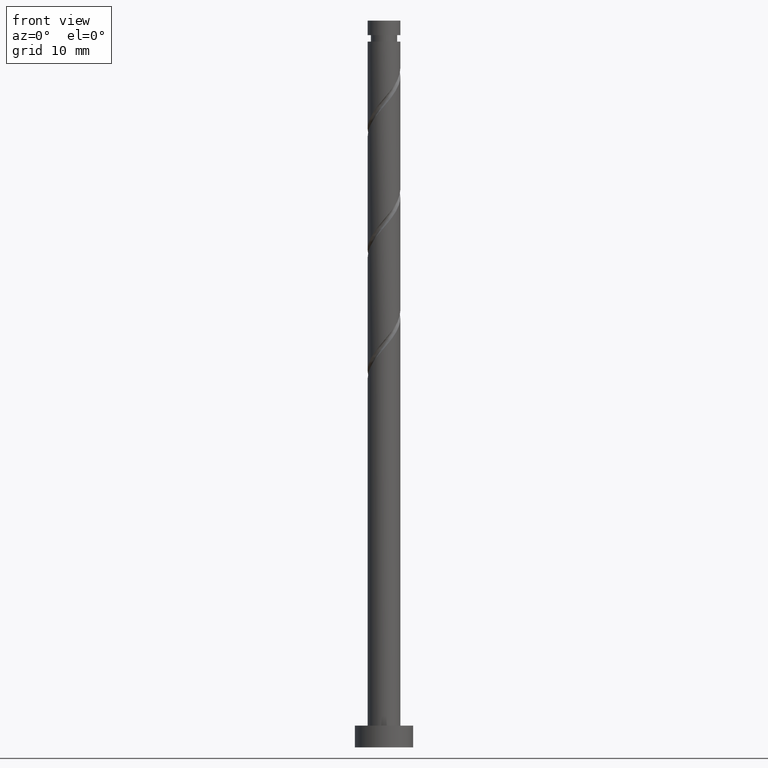
[diagram: clean part render]
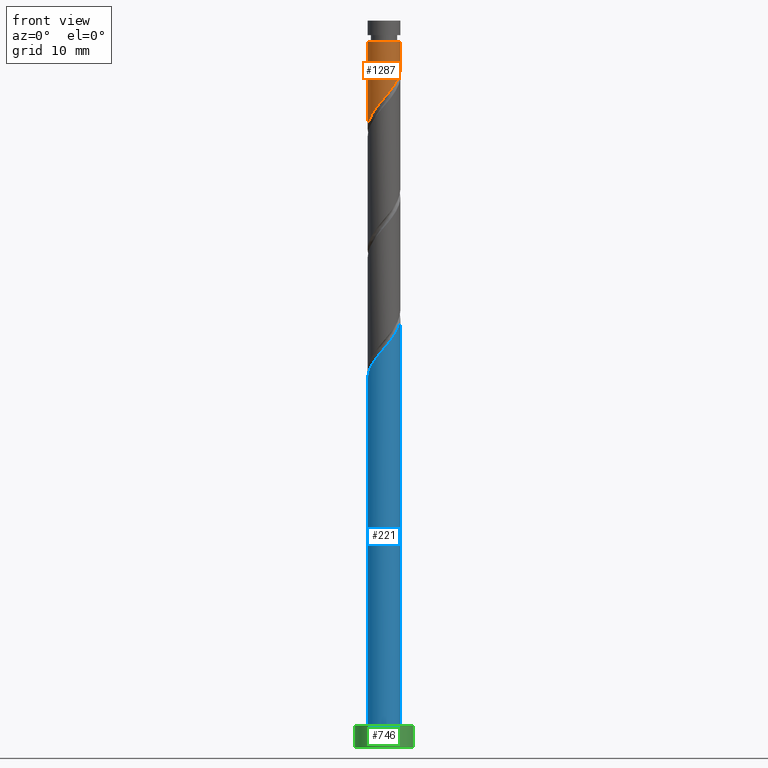
[diagram: same view with three faces highlighted in distinct colors, each labeled with its STEP entity id]
A machine part, front view with three faces highlighted in distinct colors.
Their STEP definitions:

[orange] entity #1287 — the highlighted cylindrical surface (edge-blend (fillet) strip) has radius 2.25 mm, axis along (-0, -0, -1).
#66 = CARTESIAN_POINT ( 'NONE',  ( -1.760338748084743665, -1.401323478712690251, 86.91308190522772747 ) ) ;
#73 = CARTESIAN_POINT ( 'NONE',  ( 0.000000000000000000, 0.000000000000000000, 100.0000000000000000 ) ) ;
#158 = CARTESIAN_POINT ( 'NONE',  ( 1.948486531846220116, -1.193021146543751021, 92.00567449782033691 ) ) ;
#171 = CARTESIAN_POINT ( 'NONE',  ( 2.249999999999999556, -2.913098476644292030E-16, 93.46245531206832879 ) ) ;
#184 = CARTESIAN_POINT ( 'NONE',  ( -0.4477443466979798559, -2.204999999999999627, 88.76493375707960354 ) ) ;
#208 = VECTOR ( 'NONE', #342, 1000.000000000000000 ) ;
#239 = CARTESIAN_POINT ( 'NONE',  ( 0.000000000000000000, 0.000000000000000000, 97.09826709041291792 ) ) ;
#242 =( BOUNDED_CURVE ( )  B_SPLINE_CURVE ( 2, ( #508, #1312, #862, #1080, #1431, #158, #409, #644, #743, #1098, #300, #517, #184, #1191, #613, #867, #66, #1324, #735, #306, #1067 ),
 .UNSPECIFIED., .F., .T. ) 
 B_SPLINE_CURVE_WITH_KNOTS ( ( 3, 2, 2, 2, 2, 2, 2, 2, 2, 2, 3 ),
 ( 0.3045248053855291182, 0.3055555555555555802, 0.3194444444444444198, 0.3333333333333333148, 0.3472222222222222099, 0.3611111111111111049, 0.3750000000000000000, 0.3888888888888888951, 0.4027777777777777901, 0.4166666666666666852, 0.4295248053855288406 ),
 .UNSPECIFIED. ) 
 CURVE ( )  GEOMETRIC_REPRESENTATION_ITEM ( )  RATIONAL_B_SPLINE_CURVE ( ( 0.9071930855141199235, 0.9080659294509675350, 0.9090909090909076173, 0.8952797754656421914, 0.9090909090909076173, 0.8952797754656421914, 0.9090909090909076173, 0.8952797754656421914, 0.9090909090909076173, 0.8952797754656421914, 0.9090909090909076173, 0.8952797754656421914, 0.9090909090909076173, 0.8952797754656421914, 0.9090909090909076173, 0.8952797754656421914, 0.9090909090909076173, 0.8952797754656421914, 0.9090909090909076173, 0.8963047551055824957, 0.9071930855141194794 ) ) 
 REPRESENTATION_ITEM ( '' )  );
#248 = DIRECTION ( 'NONE',  ( -0.000000000000000000, -0.000000000000000000, -1.000000000000000000 ) ) ;
#300 = CARTESIAN_POINT ( 'NONE',  ( 0.3334123574424003866, -2.225159814463828045, 89.69085968300552736 ) ) ;
#306 = CARTESIAN_POINT ( 'NONE',  ( -2.249999999999997335, -0.3668723365960327998, 85.55904149110062917 ) ) ;
#308 = AXIS2_PLACEMENT_3D ( 'NONE', #73, #315, #532 ) ;
#315 = DIRECTION ( 'NONE',  ( -0.000000000000000000, -0.000000000000000000, -1.000000000000000000 ) ) ;
#325 = FACE_OUTER_BOUND ( 'NONE', #1127, .T. ) ;
#342 = DIRECTION ( 'NONE',  ( -0.000000000000000000, -0.000000000000000000, -1.000000000000000000 ) ) ;
#359 = EDGE_CURVE ( 'NONE', #652, #495, #1027, .T. ) ;
#381 = ORIENTED_EDGE ( 'NONE', *, *, #1053, .T. ) ;
#396 = CIRCLE ( 'NONE', #439, 2.250000000000000444 ) ;
#409 = CARTESIAN_POINT ( 'NONE',  ( 1.685713841995696294, -1.490257978641318148, 91.54271153485736079 ) ) ;
#439 = AXIS2_PLACEMENT_3D ( 'NONE', #239, #248, #940 ) ;
#490 = ORIENTED_EDGE ( 'NONE', *, *, #1168, .F. ) ;
#494 = DIRECTION ( 'NONE',  ( -0.000000000000000000, -0.000000000000000000, -1.000000000000000000 ) ) ;
#495 = VERTEX_POINT ( 'NONE', #171 ) ;
#508 = CARTESIAN_POINT ( 'NONE',  ( 2.249999999999999556, -2.913098476644292523E-16, 93.46245531206832879 ) ) ;
#517 = CARTESIAN_POINT ( 'NONE',  ( -0.05894335423581530814, -2.283949408782537827, 89.22789672004253703 ) ) ;
#532 = DIRECTION ( 'NONE',  ( -1.000000000000000000, 0.000000000000000000, 0.000000000000000000 ) ) ;
#540 = CYLINDRICAL_SURFACE ( 'NONE', #308, 2.250000000000000000 ) ;
#613 = CARTESIAN_POINT ( 'NONE',  ( -1.174896474623798870, -1.918884643202026563, 87.83900783115363708 ) ) ;
#627 = CARTESIAN_POINT ( 'NONE',  ( -2.250000000000000000, 0.000000000000000000, 100.0000000000000000 ) ) ;
#644 = CARTESIAN_POINT ( 'NONE',  ( 1.422941152145172916, -1.787494810738885054, 91.07974857189439888 ) ) ;
#652 = VERTEX_POINT ( 'NONE', #945 ) ;
#693 = VECTOR ( 'NONE', #494, 1000.000000000000000 ) ;
#735 = CARTESIAN_POINT ( 'NONE',  ( -2.133458188693676760, -0.7147420213586820337, 85.98715597930180365 ) ) ;
#736 = VERTEX_POINT ( 'NONE', #1109 ) ;
#743 = CARTESIAN_POINT ( 'NONE',  ( 1.074354610632894280, -1.976932515442001437, 90.61678560893143697 ) ) ;
#862 = CARTESIAN_POINT ( 'NONE',  ( 2.249251085256692484, -0.05804787223997596307, 93.39456338670920843 ) ) ;
#867 = CARTESIAN_POINT ( 'NONE',  ( -1.513247610087451678, -1.711718695186592809, 87.37604486819070360 ) ) ;
#926 = EDGE_CURVE ( 'NONE', #652, #736, #396, .T. ) ;
#940 = DIRECTION ( 'NONE',  ( -1.000000000000000000, 0.000000000000000000, 0.000000000000000000 ) ) ;
#945 = CARTESIAN_POINT ( 'NONE',  ( 2.250000000000000444, 2.755455298081544285E-16, 97.09826709041291792 ) ) ;
#957 = LINE ( 'NONE', #627, #693 ) ;
#983 = ORIENTED_EDGE ( 'NONE', *, *, #359, .F. ) ;
#1027 = LINE ( 'NONE', #1361, #208 ) ;
#1053 = EDGE_CURVE ( 'NONE', #736, #1405, #957, .T. ) ;
#1067 = CARTESIAN_POINT ( 'NONE',  ( -2.250000000000000000, -5.676807287819645982E-16, 85.12912197873504283 ) ) ;
#1080 = CARTESIAN_POINT ( 'NONE',  ( 2.239015679208066878, -0.4546515249585263430, 92.93160042374627494 ) ) ;
#1098 = CARTESIAN_POINT ( 'NONE',  ( 0.7257680691206149781, -2.166370220145118264, 90.15382264596844664 ) ) ;
#1109 = CARTESIAN_POINT ( 'NONE',  ( -2.250000000000000444, 0.000000000000000000, 97.09826709041291792 ) ) ;
#1127 = EDGE_LOOP ( 'NONE', ( #983, #1263, #381, #490 ) ) ;
#1168 = EDGE_CURVE ( 'NONE', #495, #1405, #242, .T. ) ;
#1191 = CARTESIAN_POINT ( 'NONE',  ( -0.8365453391601453959, -2.126050591217459651, 88.30197079411661321 ) ) ;
#1263 = ORIENTED_EDGE ( 'NONE', *, *, #926, .T. ) ;
#1287 = ADVANCED_FACE ( 'NONE', ( #325 ), #540, .T. ) ;
#1312 = CARTESIAN_POINT ( 'NONE',  ( 2.249999999999999112, -0.02902876724704997816, 93.42843793813595710 ) ) ;
#1324 = CARTESIAN_POINT ( 'NONE',  ( -2.007429886082034542, -1.090928262238788804, 86.45011894226479399 ) ) ;
#1338 = CARTESIAN_POINT ( 'NONE',  ( -2.250000000000000000, -5.676807287819645982E-16, 85.12912197873504283 ) ) ;
#1361 = CARTESIAN_POINT ( 'NONE',  ( 2.250000000000000000, 2.755455298081543792E-16, 100.0000000000000000 ) ) ;
#1405 = VERTEX_POINT ( 'NONE', #1338 ) ;
#1431 = CARTESIAN_POINT ( 'NONE',  ( 2.093751105527143608, -0.8238363357511377938, 92.46863746078328461 ) ) ;

[blue] entity #221 — the highlighted cylindrical surface (edge-blend (fillet) strip) has radius 2.25 mm, axis along (-0, -0, -1).
#93 = CARTESIAN_POINT ( 'NONE',  ( -2.250000000000001776, -0.02902876724704970060, 50.76809624268985033 ) ) ;
#99 = CARTESIAN_POINT ( 'NONE',  ( -1.948486531846222780, -1.193021146543750799, 52.19085968300550604 ) ) ;
#117 = VERTEX_POINT ( 'NONE', #403 ) ;
#145 = LINE ( 'NONE', #264, #967 ) ;
#161 = CARTESIAN_POINT ( 'NONE',  ( -2.250000000000000000, 0.000000000000000000, 100.0000000000000000 ) ) ;
#205 = CARTESIAN_POINT ( 'NONE',  ( 1.760338748084745220, -1.401323478712693138, 57.28345227559809416 ) ) ;
#221 = ADVANCED_FACE ( 'NONE', ( #1363 ), #344, .T. ) ;
#230 = CARTESIAN_POINT ( 'NONE',  ( 0.000000000000000000, 0.000000000000000000, 3.000000000000000000 ) ) ;
#231 = VECTOR ( 'NONE', #724, 1000.000000000000000 ) ;
#264 = CARTESIAN_POINT ( 'NONE',  ( 2.250000000000000000, 2.755455298081543792E-16, 100.0000000000000000 ) ) ;
#333 = CARTESIAN_POINT ( 'NONE',  ( 0.05894335423581345546, -2.283949408782541379, 54.96863746078327750 ) ) ;
#344 = CYLINDRICAL_SURFACE ( 'NONE', #852, 2.250000000000000000 ) ;
#355 = DIRECTION ( 'NONE',  ( 0.000000000000000000, 0.000000000000000000, 1.000000000000000000 ) ) ;
#389 = ORIENTED_EDGE ( 'NONE', *, *, #664, .F. ) ;
#403 = CARTESIAN_POINT ( 'NONE',  ( 2.250000000000002665, -9.038074760870697025E-16, 59.06741220209084986 ) ) ;
#410 = VERTEX_POINT ( 'NONE', #1250 ) ;
#416 = EDGE_CURVE ( 'NONE', #410, #990, #1022, .T. ) ;
#449 = CARTESIAN_POINT ( 'NONE',  ( 2.007429886082036763, -1.090928262238790802, 57.74641523856106318 ) ) ;
#496 = EDGE_LOOP ( 'NONE', ( #389, #1099, #1458, #741 ) ) ;
#553 = CARTESIAN_POINT ( 'NONE',  ( -2.093751105527146272, -0.8238363357511384599, 51.72789672004253703 ) ) ;
#561 = CARTESIAN_POINT ( 'NONE',  ( 1.513247610087452788, -1.711718695186595252, 56.82048931263513225 ) ) ;
#605 = VERTEX_POINT ( 'NONE', #717 ) ;
#655 = EDGE_CURVE ( 'NONE', #605, #410, #1290, .T. ) ;
#664 = EDGE_CURVE ( 'NONE', #117, #990, #145, .T. ) ;
#682 = DIRECTION ( 'NONE',  ( -1.000000000000000000, 0.000000000000000000, 0.000000000000000000 ) ) ;
#717 = CARTESIAN_POINT ( 'NONE',  ( -2.250000000000002665, 8.963379928136229465E-16, 50.73407886875750705 ) ) ;
#724 = DIRECTION ( 'NONE',  ( -0.000000000000000000, -0.000000000000000000, -1.000000000000000000 ) ) ;
#741 = ORIENTED_EDGE ( 'NONE', *, *, #416, .T. ) ;
#756 = CARTESIAN_POINT ( 'NONE',  ( 2.250000000000000000, 2.755455298081543792E-16, 3.000000000000000000 ) ) ;
#757 =( BOUNDED_CURVE ( )  B_SPLINE_CURVE ( 2, ( #989, #93, #1108, #1225, #553, #99, #997, #1214, #1456, #1465, #902, #333, #1354, #1344, #1448, #561, #205, #449, #1359, #1014, #875 ),
 .UNSPECIFIED., .F., .T. ) 
 B_SPLINE_CURVE_WITH_KNOTS ( ( 3, 2, 2, 2, 2, 2, 2, 2, 2, 2, 3 ),
 ( 0.05452480538552915285, 0.05555555555555558023, 0.06944444444444441977, 0.08333333333333337034, 0.09722222222222220989, 0.1111111111111111605, 0.1250000000000000000, 0.1388888888888888395, 0.1527777777777777901, 0.1666666666666666297, 0.1795248053855292569 ),
 .UNSPECIFIED. ) 
 CURVE ( )  GEOMETRIC_REPRESENTATION_ITEM ( )  RATIONAL_B_SPLINE_CURVE ( ( 0.9071930855141255856, 0.9080659294509731971, 0.9090909090909131685, 0.8952797754656477425, 0.9090909090909131685, 0.8952797754656477425, 0.9090909090909131685, 0.8952797754656477425, 0.9090909090909131685, 0.8952797754656477425, 0.9090909090909131685, 0.8952797754656477425, 0.9090909090909131685, 0.8952797754656477425, 0.9090909090909131685, 0.8952797754656477425, 0.9090909090909131685, 0.8952797754656477425, 0.9090909090909131685, 0.8963047551055876028, 0.9071930855141258077 ) ) 
 REPRESENTATION_ITEM ( '' )  );
#818 = DIRECTION ( 'NONE',  ( 1.000000000000000000, 0.000000000000000000, 0.000000000000000000 ) ) ;
#852 = AXIS2_PLACEMENT_3D ( 'NONE', #1149, #1372, #682 ) ;
#875 = CARTESIAN_POINT ( 'NONE',  ( 2.250000000000002665, -9.038074760870697025E-16, 59.06741220209084986 ) ) ;
#902 = CARTESIAN_POINT ( 'NONE',  ( -0.3334123574424015524, -2.225159814463832042, 54.50567449782032980 ) ) ;
#967 = VECTOR ( 'NONE', #1395, 1000.000000000000000 ) ;
#989 = CARTESIAN_POINT ( 'NONE',  ( -2.250000000000002220, 8.963379928136229465E-16, 50.73407886875749995 ) ) ;
#990 = VERTEX_POINT ( 'NONE', #756 ) ;
#997 = CARTESIAN_POINT ( 'NONE',  ( -1.685713841995698958, -1.490257978641318370, 52.65382264596846795 ) ) ;
#1014 = CARTESIAN_POINT ( 'NONE',  ( 2.250000000000004441, -0.3668723365960236960, 58.63749268972522088 ) ) ;
#1022 = CIRCLE ( 'NONE', #1327, 2.250000000000000000 ) ;
#1099 = ORIENTED_EDGE ( 'NONE', *, *, #1264, .F. ) ;
#1108 = CARTESIAN_POINT ( 'NONE',  ( -2.249251085256695593, -0.05804787223997467244, 50.80197079411662031 ) ) ;
#1149 = CARTESIAN_POINT ( 'NONE',  ( 0.000000000000000000, 0.000000000000000000, 100.0000000000000000 ) ) ;
#1214 = CARTESIAN_POINT ( 'NONE',  ( -1.422941152145175359, -1.787494810738887274, 53.11678560893144407 ) ) ;
#1225 = CARTESIAN_POINT ( 'NONE',  ( -2.239015679208069987, -0.4546515249585260654, 51.26493375707957512 ) ) ;
#1250 = CARTESIAN_POINT ( 'NONE',  ( -2.250000000000000000, 0.000000000000000000, 3.000000000000000000 ) ) ;
#1264 = EDGE_CURVE ( 'NONE', #605, #117, #757, .T. ) ;
#1290 = LINE ( 'NONE', #161, #231 ) ;
#1327 = AXIS2_PLACEMENT_3D ( 'NONE', #230, #355, #818 ) ;
#1344 = CARTESIAN_POINT ( 'NONE',  ( 0.8365453391601450628, -2.126050591217463204, 55.89456338670918001 ) ) ;
#1354 = CARTESIAN_POINT ( 'NONE',  ( 0.4477443466979795783, -2.205000000000002736, 55.43160042374624652 ) ) ;
#1359 = CARTESIAN_POINT ( 'NONE',  ( 2.133458188693678981, -0.7147420213586844762, 58.20937820152403930 ) ) ;
#1363 = FACE_OUTER_BOUND ( 'NONE', #496, .T. ) ;
#1372 = DIRECTION ( 'NONE',  ( -0.000000000000000000, -0.000000000000000000, -1.000000000000000000 ) ) ;
#1395 = DIRECTION ( 'NONE',  ( -0.000000000000000000, -0.000000000000000000, -1.000000000000000000 ) ) ;
#1448 = CARTESIAN_POINT ( 'NONE',  ( 1.174896474623799092, -1.918884643202029006, 56.35752634967217034 ) ) ;
#1456 = CARTESIAN_POINT ( 'NONE',  ( -1.074354610632896501, -1.976932515442004101, 53.57974857189439177 ) ) ;
#1458 = ORIENTED_EDGE ( 'NONE', *, *, #655, .T. ) ;
#1465 = CARTESIAN_POINT ( 'NONE',  ( -0.7257680691206166435, -2.166370220145122261, 54.04271153485736079 ) ) ;

[green] entity #746 — the highlighted cylindrical surface (edge-blend (fillet) strip) has radius 4 mm, axis along (-0, -0, -1).
#1 = CARTESIAN_POINT ( 'NONE',  ( -4.000000000000000000, 0.000000000000000000, 0.000000000000000000 ) ) ;
#2 = CIRCLE ( 'NONE', #1160, 4.000000000000000000 ) ;
#25 = EDGE_CURVE ( 'NONE', #363, #165, #2, .T. ) ;
#106 = VECTOR ( 'NONE', #849, 1000.000000000000000 ) ;
#165 = VERTEX_POINT ( 'NONE', #531 ) ;
#240 = EDGE_LOOP ( 'NONE', ( #1325, #1384, #1303, #941 ) ) ;
#349 = VECTOR ( 'NONE', #373, 1000.000000000000000 ) ;
#360 = CARTESIAN_POINT ( 'NONE',  ( 4.000000000000000000, 4.898587196589412829E-16, 3.000000000000000000 ) ) ;
#363 = VERTEX_POINT ( 'NONE', #1 ) ;
#373 = DIRECTION ( 'NONE',  ( -0.000000000000000000, -0.000000000000000000, -1.000000000000000000 ) ) ;
#386 = CARTESIAN_POINT ( 'NONE',  ( -4.000000000000000000, 0.000000000000000000, 3.000000000000000000 ) ) ;
#405 = DIRECTION ( 'NONE',  ( -0.000000000000000000, -0.000000000000000000, -1.000000000000000000 ) ) ;
#444 = EDGE_CURVE ( 'NONE', #1474, #1466, #1351, .T. ) ;
#502 = DIRECTION ( 'NONE',  ( 1.000000000000000000, 0.000000000000000000, 0.000000000000000000 ) ) ;
#531 = CARTESIAN_POINT ( 'NONE',  ( 4.000000000000000000, 4.898587196589412829E-16, 0.000000000000000000 ) ) ;
#554 = EDGE_CURVE ( 'NONE', #1466, #165, #1084, .T. ) ;
#716 = AXIS2_PLACEMENT_3D ( 'NONE', #771, #405, #1227 ) ;
#746 = ADVANCED_FACE ( 'NONE', ( #1433 ), #869, .T. ) ;
#771 = CARTESIAN_POINT ( 'NONE',  ( 0.000000000000000000, 0.000000000000000000, 3.000000000000000000 ) ) ;
#783 = AXIS2_PLACEMENT_3D ( 'NONE', #1265, #1385, #502 ) ;
#849 = DIRECTION ( 'NONE',  ( -0.000000000000000000, -0.000000000000000000, -1.000000000000000000 ) ) ;
#858 = CARTESIAN_POINT ( 'NONE',  ( 0.000000000000000000, 0.000000000000000000, 0.000000000000000000 ) ) ;
#869 = CYLINDRICAL_SURFACE ( 'NONE', #716, 4.000000000000000000 ) ;
#941 = ORIENTED_EDGE ( 'NONE', *, *, #25, .T. ) ;
#1084 = LINE ( 'NONE', #360, #349 ) ;
#1118 = CARTESIAN_POINT ( 'NONE',  ( 4.000000000000000000, 4.898587196589412829E-16, 3.000000000000000000 ) ) ;
#1160 = AXIS2_PLACEMENT_3D ( 'NONE', #858, #1299, #1313 ) ;
#1205 = EDGE_CURVE ( 'NONE', #1474, #363, #1412, .T. ) ;
#1227 = DIRECTION ( 'NONE',  ( -1.000000000000000000, 0.000000000000000000, 0.000000000000000000 ) ) ;
#1265 = CARTESIAN_POINT ( 'NONE',  ( 0.000000000000000000, 0.000000000000000000, 3.000000000000000000 ) ) ;
#1299 = DIRECTION ( 'NONE',  ( 0.000000000000000000, 0.000000000000000000, 1.000000000000000000 ) ) ;
#1303 = ORIENTED_EDGE ( 'NONE', *, *, #1205, .T. ) ;
#1313 = DIRECTION ( 'NONE',  ( 1.000000000000000000, 0.000000000000000000, 0.000000000000000000 ) ) ;
#1325 = ORIENTED_EDGE ( 'NONE', *, *, #554, .F. ) ;
#1351 = CIRCLE ( 'NONE', #783, 4.000000000000000000 ) ;
#1384 = ORIENTED_EDGE ( 'NONE', *, *, #444, .F. ) ;
#1385 = DIRECTION ( 'NONE',  ( 0.000000000000000000, 0.000000000000000000, 1.000000000000000000 ) ) ;
#1412 = LINE ( 'NONE', #386, #106 ) ;
#1433 = FACE_OUTER_BOUND ( 'NONE', #240, .T. ) ;
#1466 = VERTEX_POINT ( 'NONE', #1118 ) ;
#1474 = VERTEX_POINT ( 'NONE', #1479 ) ;
#1479 = CARTESIAN_POINT ( 'NONE',  ( -4.000000000000000000, 0.000000000000000000, 3.000000000000000000 ) ) ;